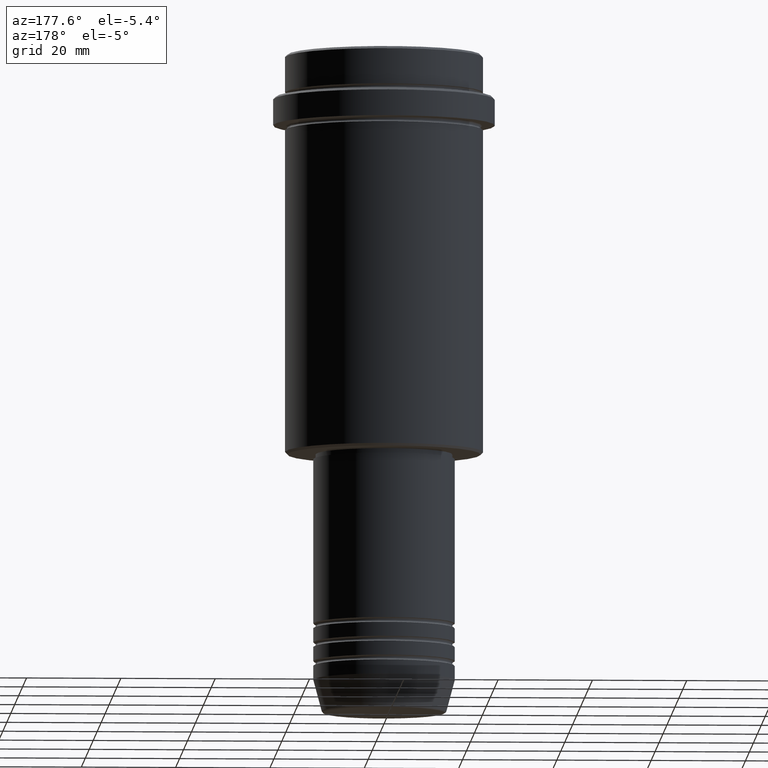
[diagram: clean part render]
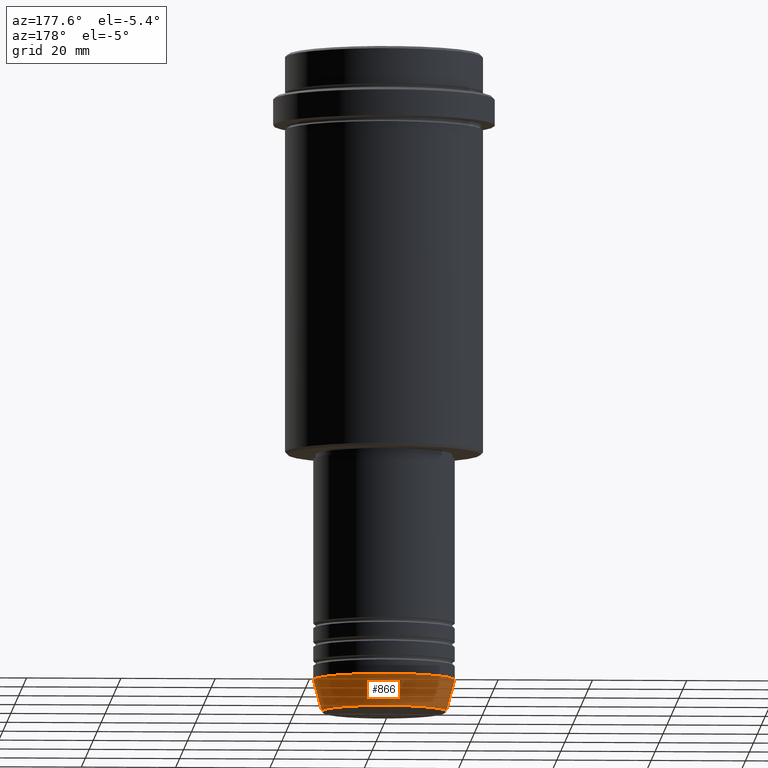
[diagram: same view with one face highlighted and labeled with its STEP entity id]
A machine part, auxiliary view. The second image highlights one B-rep face of the part: STEP entity #866.
In plain terms, the highlighted conical surface has half-angle 15 deg.
Its self-contained STEP definition (entity closure, byte-faithful):
#17 = EDGE_CURVE ( 'NONE', #800, #300, #310, .T. ) ;
#46 = ORIENTED_EDGE ( 'NONE', *, *, #617, .T. ) ;
#48 = EDGE_CURVE ( 'NONE', #250, #365, #332, .T. ) ;
#61 = CARTESIAN_POINT ( 'NONE',  ( 13.22365507213719660, 0.000000000000000000, -139.6294095225512706 ) ) ;
#114 = DIRECTION ( 'NONE',  ( -0.000000000000000000, -0.000000000000000000, 1.000000000000000000 ) ) ;
#118 = ORIENTED_EDGE ( 'NONE', *, *, #48, .F. ) ;
#144 = AXIS2_PLACEMENT_3D ( 'NONE', #975, #114, #195 ) ;
#161 = CARTESIAN_POINT ( 'NONE',  ( 15.00000000000000000, 0.000000000000000000, -133.0000000000000000 ) ) ;
#189 = FACE_OUTER_BOUND ( 'NONE', #209, .T. ) ;
#195 = DIRECTION ( 'NONE',  ( 1.000000000000000000, 0.000000000000000000, 0.000000000000000000 ) ) ;
#209 = EDGE_LOOP ( 'NONE', ( #577, #46, #118, #971 ) ) ;
#250 = VERTEX_POINT ( 'NONE', #795 ) ;
#292 = CARTESIAN_POINT ( 'NONE',  ( -15.00000000000000000, 1.836970198721029589E-15, -133.0000000000000000 ) ) ;
#298 = EDGE_CURVE ( 'NONE', #800, #250, #616, .T. ) ;
#300 = VERTEX_POINT ( 'NONE', #713 ) ;
#310 = CIRCLE ( 'NONE', #779, 13.22365507213719660 ) ;
#332 = CIRCLE ( 'NONE', #144, 15.00000000000000000 ) ;
#344 = LINE ( 'NONE', #596, #1101 ) ;
#365 = VERTEX_POINT ( 'NONE', #292 ) ;
#532 = DIRECTION ( 'NONE',  ( 1.000000000000000000, 0.000000000000000000, 0.000000000000000000 ) ) ;
#577 = ORIENTED_EDGE ( 'NONE', *, *, #17, .T. ) ;
#596 = CARTESIAN_POINT ( 'NONE',  ( -15.00000000000000000, 1.836970198721029589E-15, -133.0000000000000000 ) ) ;
#616 = LINE ( 'NONE', #161, #1285 ) ;
#617 = EDGE_CURVE ( 'NONE', #300, #365, #344, .T. ) ;
#634 = DIRECTION ( 'NONE',  ( -0.000000000000000000, -0.000000000000000000, 1.000000000000000000 ) ) ;
#705 = DIRECTION ( 'NONE',  ( -0.2588190451025210725, 3.169619151431769255E-17, 0.9659258262890680902 ) ) ;
#713 = CARTESIAN_POINT ( 'NONE',  ( -13.22365507213719837, 1.728200442216588780E-15, -139.6294095225512706 ) ) ;
#723 = AXIS2_PLACEMENT_3D ( 'NONE', #1058, #634, #947 ) ;
#744 = CONICAL_SURFACE ( 'NONE', #723, 15.00000000000000000, 0.2617993877991497964 ) ;
#779 = AXIS2_PLACEMENT_3D ( 'NONE', #1088, #968, #532 ) ;
#795 = CARTESIAN_POINT ( 'NONE',  ( 15.00000000000000000, 0.000000000000000000, -133.0000000000000000 ) ) ;
#800 = VERTEX_POINT ( 'NONE', #61 ) ;
#866 = ADVANCED_FACE ( 'NONE', ( #189 ), #744, .T. ) ;
#947 = DIRECTION ( 'NONE',  ( 1.000000000000000000, 0.000000000000000000, 0.000000000000000000 ) ) ;
#968 = DIRECTION ( 'NONE',  ( -0.000000000000000000, -0.000000000000000000, 1.000000000000000000 ) ) ;
#971 = ORIENTED_EDGE ( 'NONE', *, *, #298, .F. ) ;
#975 = CARTESIAN_POINT ( 'NONE',  ( 0.000000000000000000, 0.000000000000000000, -133.0000000000000000 ) ) ;
#1044 = DIRECTION ( 'NONE',  ( 0.2588190451025210725, 0.000000000000000000, 0.9659258262890680902 ) ) ;
#1058 = CARTESIAN_POINT ( 'NONE',  ( 0.000000000000000000, 0.000000000000000000, -133.0000000000000000 ) ) ;
#1088 = CARTESIAN_POINT ( 'NONE',  ( 0.000000000000000000, 0.000000000000000000, -139.6294095225512706 ) ) ;
#1101 = VECTOR ( 'NONE', #705, 1000.000000000000114 ) ;
#1285 = VECTOR ( 'NONE', #1044, 1000.000000000000114 ) ;